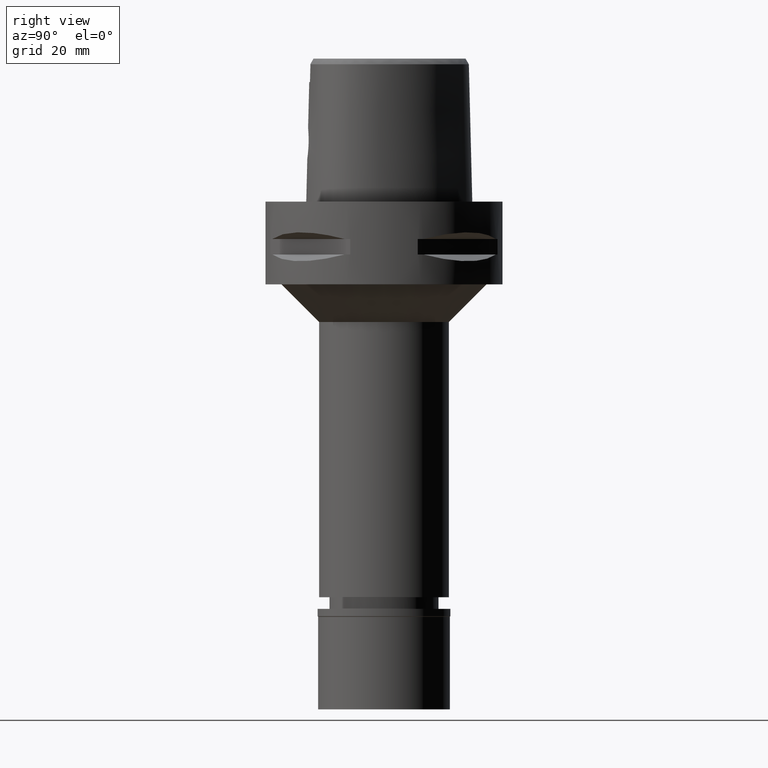
[diagram: clean part render]
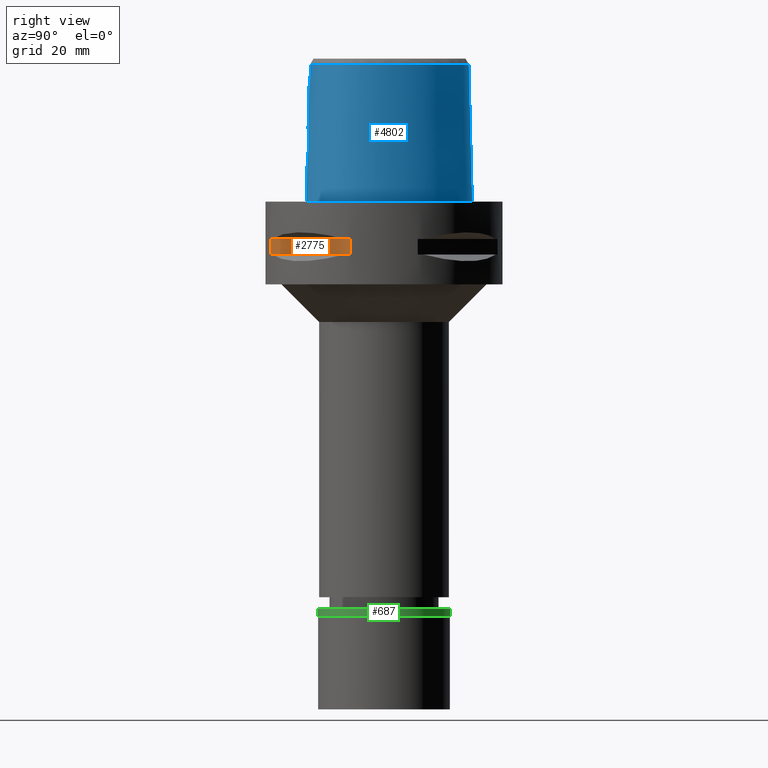
[diagram: same view with three faces highlighted in distinct colors, each labeled with its STEP entity id]
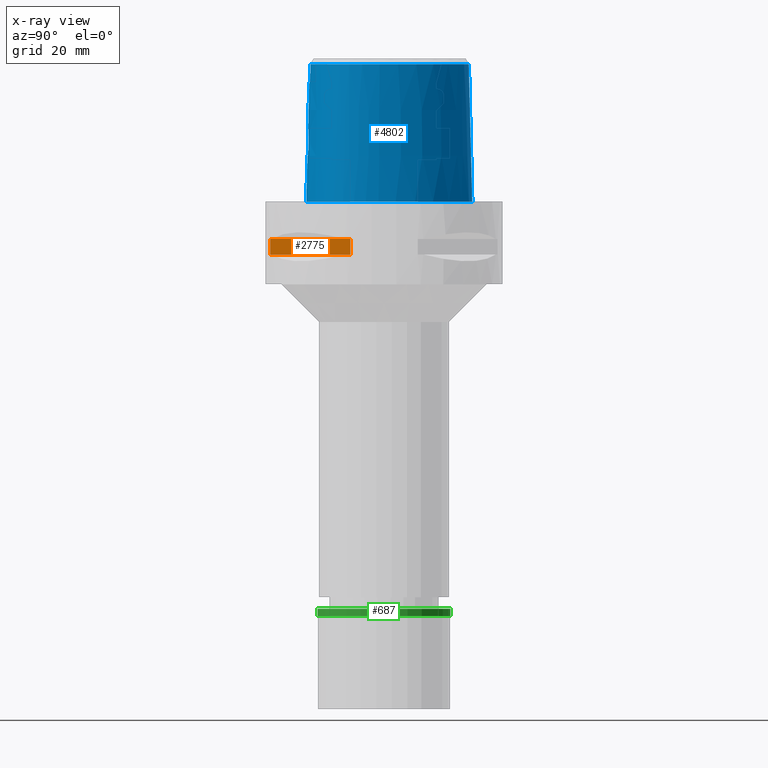
[diagram: x-ray of the same camera — body ghosted, the three highlighted faces saturated]
A machine part, right view with three faces highlighted in distinct colors.
The next image is the same camera in x-ray (body ghosted, the three faces saturated) — at least one of them is partly hidden behind the body in this view.
Their STEP definitions:

[orange] entity #2775 — the highlighted planar face has unit normal (-0.7071, 0.7071, 0).
#26 = CARTESIAN_POINT ( 'NONE',  ( 8.981198972016999349, -30.19251670572000279, -14.05000000000000071 ) ) ;
#368 = VERTEX_POINT ( 'NONE', #4318 ) ;
#369 = ORIENTED_EDGE ( 'NONE', *, *, #1678, .T. ) ;
#520 = EDGE_CURVE ( 'NONE', #2827, #368, #4871, .T. ) ;
#658 = FACE_OUTER_BOUND ( 'NONE', #4278, .T. ) ;
#858 = CARTESIAN_POINT ( 'NONE',  ( 8.981198972016999349, -30.19251670572000279, -9.950000000000001066 ) ) ;
#918 = LINE ( 'NONE', #858, #3631 ) ;
#1078 = PLANE ( 'NONE',  #1776 ) ;
#1226 = DIRECTION ( 'NONE',  ( 0.7071067811865474617, 0.7071067811865474617, 0.0000000000000000000 ) ) ;
#1415 = ORIENTED_EDGE ( 'NONE', *, *, #1747, .T. ) ;
#1500 = CARTESIAN_POINT ( 'NONE',  ( 30.19251670572000279, -8.981198972016999349, -14.05000000000000071 ) ) ;
#1678 = EDGE_CURVE ( 'NONE', #3376, #1907, #2363, .T. ) ;
#1747 = EDGE_CURVE ( 'NONE', #2827, #3376, #918, .T. ) ;
#1776 = AXIS2_PLACEMENT_3D ( 'NONE', #2218, #2975, #3757 ) ;
#1907 = VERTEX_POINT ( 'NONE', #4098 ) ;
#2027 = DIRECTION ( 'NONE',  ( 0.0000000000000000000, 0.0000000000000000000, -1.000000000000000000 ) ) ;
#2126 = ORIENTED_EDGE ( 'NONE', *, *, #4022, .T. ) ;
#2218 = CARTESIAN_POINT ( 'NONE',  ( 31.96122650962999856, -7.212489168103000559, -9.950000000000001066 ) ) ;
#2363 = LINE ( 'NONE', #26, #2417 ) ;
#2417 = VECTOR ( 'NONE', #1226, 1000.000000000000114 ) ;
#2573 = CARTESIAN_POINT ( 'NONE',  ( 8.981198972019999616, -30.19251670572000279, -9.950000000000001066 ) ) ;
#2577 = CARTESIAN_POINT ( 'NONE',  ( 8.981198972016999349, -30.19251670572000279, -9.950000000000001066 ) ) ;
#2689 = LINE ( 'NONE', #1500, #3643 ) ;
#2775 = ADVANCED_FACE ( 'NONE', ( #658 ), #1078, .F. ) ;
#2827 = VERTEX_POINT ( 'NONE', #2573 ) ;
#2975 = DIRECTION ( 'NONE',  ( -0.7071067811865475727, 0.7071067811865475727, 0.0000000000000000000 ) ) ;
#3215 = ORIENTED_EDGE ( 'NONE', *, *, #520, .F. ) ;
#3376 = VERTEX_POINT ( 'NONE', #4638 ) ;
#3631 = VECTOR ( 'NONE', #2027, 1000.000000000000000 ) ;
#3643 = VECTOR ( 'NONE', #4634, 1000.000000000000000 ) ;
#3739 = DIRECTION ( 'NONE',  ( 0.7071067811865474617, 0.7071067811865474617, 0.0000000000000000000 ) ) ;
#3757 = DIRECTION ( 'NONE',  ( 0.0000000000000000000, 0.0000000000000000000, 1.000000000000000000 ) ) ;
#4022 = EDGE_CURVE ( 'NONE', #1907, #368, #2689, .T. ) ;
#4096 = VECTOR ( 'NONE', #3739, 1000.000000000000114 ) ;
#4098 = CARTESIAN_POINT ( 'NONE',  ( 30.19251670572000279, -8.981198972019999616, -14.05000000000000071 ) ) ;
#4278 = EDGE_LOOP ( 'NONE', ( #3215, #1415, #369, #2126 ) ) ;
#4318 = CARTESIAN_POINT ( 'NONE',  ( 30.19251670572000279, -8.981198972016999349, -9.950000000000001066 ) ) ;
#4634 = DIRECTION ( 'NONE',  ( 0.0000000000000000000, 0.0000000000000000000, 1.000000000000000000 ) ) ;
#4638 = CARTESIAN_POINT ( 'NONE',  ( 8.981198972016999349, -30.19251670572000279, -14.05000000000000071 ) ) ;
#4871 = LINE ( 'NONE', #2577, #4096 ) ;

[blue] entity #4802 — the highlighted face is a freeform B-spline surface patch.
#3 = CARTESIAN_POINT ( 'NONE',  ( 2.305334229535943802, -20.12831948498825341, 18.83048013503533014 ) ) ;
#7 = CARTESIAN_POINT ( 'NONE',  ( -0.4558512610111000174, 22.85344955228999808, 24.59140896827000233 ) ) ;
#47 = DIRECTION ( 'NONE',  ( 1.720264183761959277E-12, 0.02499051290962944413, -0.9996876883629776112 ) ) ;
#116 = CARTESIAN_POINT ( 'NONE',  ( 1.870063857759000081, -20.39691443148999994, 11.93048553905999931 ) ) ;
#140 = VECTOR ( 'NONE', #47, 999.9999999999998863 ) ;
#174 = CARTESIAN_POINT ( 'NONE',  ( 20.07948471261000023, -10.22500054636999955, 37.25233239748000358 ) ) ;
#198 = CARTESIAN_POINT ( 'NONE',  ( 4.868968357505999656, 21.95285521589000055, 24.59140896827000233 ) ) ;
#205 = EDGE_CURVE ( 'NONE', #4955, #2839, #4650, .T. ) ;
#208 = CARTESIAN_POINT ( 'NONE',  ( 2.282207029747092886, -20.29700151028867694, 12.15162930637129612 ) ) ;
#234 = CARTESIAN_POINT ( 'NONE',  ( 2.830175095662165408, -20.24590160278924600, 12.60298252333854663 ) ) ;
#239 = CARTESIAN_POINT ( 'NONE',  ( 19.64947370050258613, -12.82525393668216651, -2.066734200662292964E-06 ) ) ;
#255 = CARTESIAN_POINT ( 'NONE',  ( 3.644654988697317854, -20.14185568960485995, 13.73169098995836279 ) ) ;
#269 = CARTESIAN_POINT ( 'NONE',  ( 21.14970177531354878, -6.717195943319764773, 36.52186680739942659 ) ) ;
#280 = CARTESIAN_POINT ( 'NONE',  ( 1.488028627206210652, -20.35026873354180665, 11.73319909950379092 ) ) ;
#295 = CARTESIAN_POINT ( 'NONE',  ( 17.80867301126000157, 10.28184204531000034, 11.93048553905999931 ) ) ;
#306 = ORIENTED_EDGE ( 'NONE', *, *, #3628, .T. ) ;
#320 = CARTESIAN_POINT ( 'NONE',  ( 20.65879041319000109, -10.48283616354000003, 11.93048553905999931 ) ) ;
#338 = CARTESIAN_POINT ( 'NONE',  ( 2.673904828756407337, -20.10928166633797076, 18.54472627324917156 ) ) ;
#340 = CARTESIAN_POINT ( 'NONE',  ( 7.099337602270000325, 20.50831360947000093, 37.25233239748000358 ) ) ;
#341 = CARTESIAN_POINT ( 'NONE',  ( 14.22011350745951574, -16.41829354688277931, 36.52186680739942659 ) ) ;
#362 = CARTESIAN_POINT ( 'NONE',  ( 3.745459306423714274, -20.04797394566475788, 17.04080371185160914 ) ) ;
#392 = CARTESIAN_POINT ( 'NONE',  ( 2.144427845716718739, -20.13626349860817299, 18.93810770242221153 ) ) ;
#412 = CARTESIAN_POINT ( 'NONE',  ( 2.361140904826402043, -20.12552479265203331, 18.79118822093476027 ) ) ;
#416 = CARTESIAN_POINT ( 'NONE',  ( 2.503210888525999600, 22.99958931155000030, 11.93048553905999931 ) ) ;
#427 = FACE_OUTER_BOUND ( 'NONE', #1466, .T. ) ;
#497 = CARTESIAN_POINT ( 'NONE',  ( 2.041042029990999821E-08, -19.88004246002000031, 31.80000004972000127 ) ) ;
#510 = CARTESIAN_POINT ( 'NONE',  ( -0.4479923869737000297, -20.05810122427000053, 24.59140896827000233 ) ) ;
#524 = CARTESIAN_POINT ( 'NONE',  ( 0.0000000000000000000, -20.18628283968999781, 19.55000000000000071 ) ) ;
#535 = VERTEX_POINT ( 'NONE', #4106 ) ;
#566 = CARTESIAN_POINT ( 'NONE',  ( 18.35112148606999938, -13.96357030615000028, 11.93048553905999931 ) ) ;
#579 = CARTESIAN_POINT ( 'NONE',  ( 0.0000000000000000000, -20.18628283968999781, 19.55000000000000071 ) ) ;
#588 = CARTESIAN_POINT ( 'NONE',  ( 10.34823226808999941, 18.70095486035000221, 24.59140896827000233 ) ) ;
#626 = CARTESIAN_POINT ( 'NONE',  ( 16.95889175801266191, -15.67838871266147649, -2.066734200662292964E-06 ) ) ;
#679 = EDGE_CURVE ( 'NONE', #535, #2009, #3219, .T. ) ;
#685 = CARTESIAN_POINT ( 'NONE',  ( 19.86834399741999846, 4.339653554736999652, 37.25233239748000358 ) ) ;
#686 = CARTESIAN_POINT ( 'NONE',  ( 19.55745538001157513, -11.29150212657400587, 36.52186680739942659 ) ) ;
#708 = CARTESIAN_POINT ( 'NONE',  ( 17.53318563476999969, 10.12278921585000013, 24.59140896827000233 ) ) ;
#732 = CARTESIAN_POINT ( 'NONE',  ( 3.765593220699258392, -20.04704214534180906, 16.99108095766955984 ) ) ;
#735 = CARTESIAN_POINT ( 'NONE',  ( 7.580410842822999484, 21.33037926746000323, -0.7304378901465999885 ) ) ;
#744 = EDGE_CURVE ( 'NONE', #3391, #1271, #1643, .T. ) ;
#755 = CARTESIAN_POINT ( 'NONE',  ( 16.39211273426368010, -14.95758104715331172, 36.52186680739942659 ) ) ;
#779 = CARTESIAN_POINT ( 'NONE',  ( 2.915545606163441050, -20.09570297646316206, 18.31119129211962360 ) ) ;
#814 = CARTESIAN_POINT ( 'NONE',  ( -0.6834383972313999855, 22.83968675549000338, 24.59140896827000233 ) ) ;
#834 = CARTESIAN_POINT ( 'NONE',  ( 2.894506219204310948, -20.09690955887031549, 18.33274339089276594 ) ) ;
#837 = CARTESIAN_POINT ( 'NONE',  ( 4.750826077225000610, 21.65775770017999591, 37.25233239748000358 ) ) ;
#883 = VERTEX_POINT ( 'NONE', #579 ) ;
#908 = CARTESIAN_POINT ( 'NONE',  ( -0.4561077450366000097, -20.69106756147000326, -0.7304378901465999885 ) ) ;
#930 = CARTESIAN_POINT ( 'NONE',  ( 11.23887130433999992, -18.91049776510999791, -0.7304378901465999885 ) ) ;
#954 = CARTESIAN_POINT ( 'NONE',  ( 16.38077671595999973, -14.94316433702999980, 37.25233239748000358 ) ) ;
#980 = CARTESIAN_POINT ( 'NONE',  ( 21.05621876987999741, -0.4440252194307000022, 37.25233239748000358 ) ) ;
#1010 = CARTESIAN_POINT ( 'NONE',  ( 21.13154853379999665, -6.714587026899999422, 37.25233239748000358 ) ) ;
#1016 = CARTESIAN_POINT ( 'NONE',  ( 2.396851615580802175, -20.28741283536880502, 12.23208293719615547 ) ) ;
#1039 = CARTESIAN_POINT ( 'NONE',  ( 3.850246712570787100, -20.10780614032470837, 14.21172176769479734 ) ) ;
#1043 = CARTESIAN_POINT ( 'NONE',  ( 22.24453913037089237, -4.100468749696545956, -2.066734200662292964E-06 ) ) ;
#1090 = CARTESIAN_POINT ( 'NONE',  ( 3.714384130523716188, -20.13065104887486712, 13.88538127571099956 ) ) ;
#1099 = CARTESIAN_POINT ( 'NONE',  ( 14.42198652406999848, 15.65278600593999769, -0.7304378901465999885 ) ) ;
#1113 = CARTESIAN_POINT ( 'NONE',  ( 7.571159460527183249, 21.31457035722905502, -2.066734200662292964E-06 ) ) ;
#1117 = CARTESIAN_POINT ( 'NONE',  ( 4.020738798819311732, -20.06858537622277439, 14.99755720161237527 ) ) ;
#1122 = CARTESIAN_POINT ( 'NONE',  ( 10.14358053135999960, 18.45723390973000377, 37.25233239748000358 ) ) ;
#1123 = CARTESIAN_POINT ( 'NONE',  ( 21.07429999883084193, -0.4408303635840806201, 36.52186680739942659 ) ) ;
#1170 = CARTESIAN_POINT ( 'NONE',  ( 3.860403433736958601, -20.04330035600994009, 16.72651338064794047 ) ) ;
#1174 = CARTESIAN_POINT ( 'NONE',  ( 21.32871516739992757, -4.105831245033825461, 36.52186680739942659 ) ) ;
#1195 = CARTESIAN_POINT ( 'NONE',  ( 4.048221369819505533, -20.05572751809215148, 15.37605551826763239 ) ) ;
#1198 = B_SPLINE_SURFACE_WITH_KNOTS ( 'NONE', 3, 3, ( 
 ( #2046, #3590, #1666, #3614 ),
 ( #908, #1991, #510, #1325 ),
 ( #3534, #116, #1691, #2864 ),
 ( #3156, #4700, #2782, #4400 ),
 ( #930, #2487, #4008, #3452 ),
 ( #2293, #3409, #3431, #3828 ),
 ( #4448, #4851, #4420, #954 ),
 ( #2511, #566, #3668, #2939 ),
 ( #1854, #2646, #4034, #3285 ),
 ( #4963, #4473, #4941, #3029 ),
 ( #1485, #320, #1881, #174 ),
 ( #3051, #1504, #3311, #1737 ),
 ( #1395, #2536, #2123, #1010 ),
 ( #4564, #2558, #4085, #2671 ),
 ( #4587, #2909, #1761, #980 ),
 ( #4824, #1369, #4185, #685 ),
 ( #2245, #295, #708, #3783 ),
 ( #1099, #2268, #1904, #3806 ),
 ( #4212, #4060, #588, #1122 ),
 ( #735, #2883, #2147, #340 ),
 ( #1347, #3690, #198, #837 ),
 ( #3075, #416, #2416, #4689 ),
 ( #1529, #1959, #1230, #1979 ),
 ( #4616, #2771, #7, #4661 ),
 ( #3903, #4311, #814, #4639 ) ),
 .UNSPECIFIED., .F., .F., .F.,
 ( 4, 1, 1, 1, 1, 1, 1, 1, 1, 1, 1, 1, 1, 1, 1, 1, 1, 1, 1, 1, 1, 1, 4 ),
 ( 4, 4 ),
 ( -0.008985960173574000093, 0.0000000000000000000, 0.08333333333339000559, 0.1666666666667000196, 0.2083333333333000081, 0.2500000000000000000, 0.2916666666666999919, 0.3125000000000000000, 0.3333333333333000081, 0.3541666666666000163, 0.3749999999998999689, 0.4166666666666000163, 0.4583333333332000326, 0.4999999999998999689, 0.5833333333331000015, 0.6666666666664999852, 0.7499999999998000488, 0.8333333333329999704, 0.8749999999997000177, 0.9166666666664000651, 0.9583333333329999704, 1.000000000000000000, 1.011710456763000199 ),
 ( -4.340253559332000284E-09, 1.000000221353000152 ),
 .UNSPECIFIED. ) ;
#1230 = CARTESIAN_POINT ( 'NONE',  ( 0.5826623200121999746, 22.88447422427000078, 24.59140896827000233 ) ) ;
#1271 = VERTEX_POINT ( 'NONE', #3693 ) ;
#1299 = ORIENTED_EDGE ( 'NONE', *, *, #679, .T. ) ;
#1325 = CARTESIAN_POINT ( 'NONE',  ( -0.4439347079422999998, -19.74161805566999917, 37.25233239748000358 ) ) ;
#1347 = CARTESIAN_POINT ( 'NONE',  ( 5.105252918069000501, 22.54305024730000184, -0.7304378901465999885 ) ) ;
#1369 = CARTESIAN_POINT ( 'NONE',  ( 20.46725036855000113, 4.555493622105000640, 11.93048553905999931 ) ) ;
#1372 = ORIENTED_EDGE ( 'NONE', *, *, #3898, .T. ) ;
#1395 = CARTESIAN_POINT ( 'NONE',  ( 22.07548129635000222, -6.850245536236999833, -0.7304378901465999885 ) ) ;
#1402 = CARTESIAN_POINT ( 'NONE',  ( 3.042491796687598615, -20.22274507510632802, 12.82354767343123747 ) ) ;
#1406 = CARTESIAN_POINT ( 'NONE',  ( 2.113823676138480767, -20.67500005166150601, -2.066734200662292964E-06 ) ) ;
#1423 = CARTESIAN_POINT ( 'NONE',  ( 2.628027080903733825, -20.26624238139267931, 12.41747670475470855 ) ) ;
#1426 = CARTESIAN_POINT ( 'NONE',  ( 6.341471028391895359, -20.29812505114589172, -2.066734200662292964E-06 ) ) ;
#1446 = CARTESIAN_POINT ( 'NONE',  ( 1.511996643077990310, -20.34900293593731746, 11.74281483622983657 ) ) ;
#1466 = EDGE_LOOP ( 'NONE', ( #3877, #1299, #4872, #4138, #306, #4337, #3593, #1372 ) ) ;
#1474 = CARTESIAN_POINT ( 'NONE',  ( 2.808608589973694336, -20.24816661311869481, 12.58196638594458072 ) ) ;
#1485 = CARTESIAN_POINT ( 'NONE',  ( 20.94844326348000152, -10.61175397212999982, -0.7304378901465999885 ) ) ;
#1502 = CARTESIAN_POINT ( 'NONE',  ( 3.559803832330558304, -20.05788146350366574, 17.44950363746816180 ) ) ;
#1504 = CARTESIAN_POINT ( 'NONE',  ( 21.26836734601999979, -8.910752224874999072, 11.93048553905999931 ) ) ;
#1525 = CARTESIAN_POINT ( 'NONE',  ( 4.049995275655164484, -20.05320010482691373, 15.46762644421683852 ) ) ;
#1529 = CARTESIAN_POINT ( 'NONE',  ( 0.6155340743139999793, 23.51883498281999962, -0.7304378901465999885 ) ) ;
#1555 = CARTESIAN_POINT ( 'NONE',  ( 10.15538781006817182, 18.47129526702395452, 36.52186680739942659 ) ) ;
#1574 = CARTESIAN_POINT ( 'NONE',  ( 3.080229322184548035, -20.08617626112495103, 18.13071590546288192 ) ) ;
#1594 = CARTESIAN_POINT ( 'NONE',  ( 18.06826693023942809, 10.43171877596624064, -2.066734200662292964E-06 ) ) ;
#1598 = CARTESIAN_POINT ( 'NONE',  ( 2.772326413959757208, -20.10389738242800917, 18.45539022241212379 ) ) ;
#1603 = CARTESIAN_POINT ( 'NONE',  ( 3.736696120837999402, -19.67778323291999953, 31.80000004972999861 ) ) ;
#1613 = EDGE_CURVE ( 'NONE', #4955, #883, #3998, .T. ) ;
#1643 = B_SPLINE_CURVE_WITH_KNOTS ( 'NONE', 3,
 ( #1603, #4335, #3126, #1960 ),
 .UNSPECIFIED., .F., .F.,
 ( 4, 4 ),
 ( 0.0000000000000000000, 1.000000000000000000 ),
 .UNSPECIFIED. ) ;
#1644 = CARTESIAN_POINT ( 'NONE',  ( 3.637738219117000238, -19.56971420299000286, 36.52185956443999970 ) ) ;
#1666 = CARTESIAN_POINT ( 'NONE',  ( -0.6718836805062998740, -20.05378834289000167, 24.59140896827000233 ) ) ;
#1691 = CARTESIAN_POINT ( 'NONE',  ( 1.853272111966999924, -20.08023966233000124, 24.59140896827000233 ) ) ;
#1714 = VERTEX_POINT ( 'NONE', #4331 ) ;
#1737 = CARTESIAN_POINT ( 'NONE',  ( 20.65947724267000041, -8.729764281241999768, 37.25233239748000358 ) ) ;
#1761 = CARTESIAN_POINT ( 'NONE',  ( 21.36961485364000168, -0.3886498180556000048, 24.59140896827000233 ) ) ;
#1770 = CARTESIAN_POINT ( 'NONE',  ( 2.570081009084386192, -20.27170108689807293, 12.36908902939368460 ) ) ;
#1797 = CARTESIAN_POINT ( 'NONE',  ( 3.504989208434506676, -20.16277707621800275, 13.46647361527119813 ) ) ;
#1829 = CARTESIAN_POINT ( 'NONE',  ( 7.300578979383843148, -19.07170738130534104, 36.52186680739942659 ) ) ;
#1842 = CARTESIAN_POINT ( 'NONE',  ( 1.537967824490865887, -20.34761404973959031, 11.75337532982797484 ) ) ;
#1854 = CARTESIAN_POINT ( 'NONE',  ( 19.66427015052999749, -12.83600704984000096, -0.7304378901465999885 ) ) ;
#1877 = CARTESIAN_POINT ( 'NONE',  ( 2.467729343594165847, -20.12009802658482016, 18.71204267792763787 ) ) ;
#1881 = CARTESIAN_POINT ( 'NONE',  ( 20.36913756290000066, -10.35391835495999935, 24.59140896827000233 ) ) ;
#1903 = CARTESIAN_POINT ( 'NONE',  ( 3.736696120837999402, -19.67778323291999953, 31.80000004972999861 ) ) ;
#1904 = CARTESIAN_POINT ( 'NONE',  ( 13.93560852859000043, 15.24203780001000119, 24.59140896827000233 ) ) ;
#1905 = CARTESIAN_POINT ( 'NONE',  ( 13.70645019739091097, 15.04851265230396962, 36.52186680739942659 ) ) ;
#1928 = CARTESIAN_POINT ( 'NONE',  ( 4.049643110176806005, -20.05399160878187814, 15.43795828973407325 ) ) ;
#1932 = CARTESIAN_POINT ( 'NONE',  ( 20.09619608768375443, -10.23243839430028146, 36.52186680739942659 ) ) ;
#1956 = CARTESIAN_POINT ( 'NONE',  ( 1.856701250911930279, -20.14848423775700681, 19.09993988372597684 ) ) ;
#1959 = CARTESIAN_POINT ( 'NONE',  ( 0.5990981971630999769, 23.20165460353999975, 11.93048553905999931 ) ) ;
#1960 = CARTESIAN_POINT ( 'NONE',  ( 2.041042029990999821E-08, -19.88004246002000031, 31.80000004972000127 ) ) ;
#1968 = CARTESIAN_POINT ( 'NONE',  ( -9.433993878921999819E-13, -20.38876923348000147, 11.44999999999999929 ) ) ;
#1976 = CARTESIAN_POINT ( 'NONE',  ( 3.828814954409509586, -20.04436409866676527, 16.82317999465562863 ) ) ;
#1979 = CARTESIAN_POINT ( 'NONE',  ( 0.5662264428612999723, 22.56729384499999824, 37.25233239748000358 ) ) ;
#1991 = CARTESIAN_POINT ( 'NONE',  ( -0.4520500660052000352, -20.37458439286999834, 11.93048553905999931 ) ) ;
#2009 = VERTEX_POINT ( 'NONE', #1644 ) ;
#2046 = CARTESIAN_POINT ( 'NONE',  ( -0.6840631437227000511, -20.68668116917000432, -0.7304378901465999885 ) ) ;
#2075 = LINE ( 'NONE', #3623, #140 ) ;
#2123 = CARTESIAN_POINT ( 'NONE',  ( 21.44619278797999939, -6.759806530011999826, 24.59140896827000233 ) ) ;
#2147 = CARTESIAN_POINT ( 'NONE',  ( 7.259695349121000341, 20.78233549547000081, 24.59140896827000233 ) ) ;
#2184 = CARTESIAN_POINT ( 'NONE',  ( 1.319600680390656811, -20.35863312411228421, 11.66994494017201411 ) ) ;
#2209 = CARTESIAN_POINT ( 'NONE',  ( 2.953000302320876624, -20.23281254683992003, 12.72512295699170082 ) ) ;
#2210 = B_SPLINE_CURVE_WITH_KNOTS ( 'NONE', 3,
 ( #4406, #3270, #3167, #4811 ),
 .UNSPECIFIED., .F., .F.,
 ( 4, 4 ),
 ( 0.0000000000000000000, 1.000000000000000000 ),
 .UNSPECIFIED. ) ;
#2221 = CARTESIAN_POINT ( 'NONE',  ( -1.721531780973000088E-11, 22.56201468012000078, 36.52186680743999858 ) ) ;
#2236 = CARTESIAN_POINT ( 'NONE',  ( 14.67337966984966258, -17.21410160753009677, -2.066734200662292964E-06 ) ) ;
#2245 = CARTESIAN_POINT ( 'NONE',  ( 18.08416038776000079, 10.44089487477999967, -0.7304378901465999885 ) ) ;
#2268 = CARTESIAN_POINT ( 'NONE',  ( 14.17879752633000123, 15.44741190297999900, 11.93048553905999931 ) ) ;
#2269 = CARTESIAN_POINT ( 'NONE',  ( 3.637738219117000238, -19.56971420299000286, 36.52185956443999970 ) ) ;
#2291 = CARTESIAN_POINT ( 'NONE',  ( 3.003234361618615011, -20.09064592609322020, 18.21745801850156354 ) ) ;
#2293 = CARTESIAN_POINT ( 'NONE',  ( 14.68244497380999825, -17.23001773488000055, -0.7304378901465999885 ) ) ;
#2313 = CARTESIAN_POINT ( 'NONE',  ( 7.108589361577482002, 20.52412316394452674, 36.52186680739942659 ) ) ;
#2333 = CARTESIAN_POINT ( 'NONE',  ( 4.026067555606275938, -20.04243146964168787, 16.01312629722239578 ) ) ;
#2360 = CARTESIAN_POINT ( 'NONE',  ( 4.563156939745000540E-11, 23.47499999999000053, 5.514107688971999147E-14 ) ) ;
#2416 = CARTESIAN_POINT ( 'NONE',  ( 2.438150570192000099, 22.68791623401000024, 24.59140896827000233 ) ) ;
#2456 = B_SPLINE_CURVE_WITH_KNOTS ( 'NONE', 3,
 ( #4864, #1406, #1426, #2568, #2236, #626, #3730, #239, #4885, #3753, #2970, #4506, #1043, #2596, #4127, #1594, #4979, #2664, #1113, #4580, #3844, #4279, #2360 ),
 .UNSPECIFIED., .F., .F.,
 ( 4, 1, 1, 1, 1, 1, 1, 1, 1, 1, 1, 1, 1, 1, 1, 1, 1, 1, 1, 1, 4 ),
 ( 0.0000000000000000000, 0.08333333333339000559, 0.1666666666667000196, 0.2083333333333000081, 0.2500000000000000000, 0.2916666666666999919, 0.3125000000000000000, 0.3333333333333000081, 0.3541666666666000163, 0.3749999999998999689, 0.4166666666666000163, 0.4583333333332000326, 0.4999999999998999689, 0.5833333333331000015, 0.6666666666664999852, 0.7499999999998000488, 0.8333333333329999704, 0.8749999999997000177, 0.9166666666664000651, 0.9583333333329999704, 1.000000000000000000 ),
 .UNSPECIFIED. ) ;
#2476 = CARTESIAN_POINT ( 'NONE',  ( 6.840933290501420598E-09, -20.08420636276543547, 23.63333344114123236 ) ) ;
#2487 = CARTESIAN_POINT ( 'NONE',  ( 11.13012652863999996, -18.61140108638999990, 11.93048553905999931 ) ) ;
#2511 = CARTESIAN_POINT ( 'NONE',  ( 18.58171406970000206, -14.18198046912999999, -0.7304378901465999885 ) ) ;
#2536 = CARTESIAN_POINT ( 'NONE',  ( 21.76083704216000214, -6.805026033124000229, 11.93048553905999931 ) ) ;
#2558 = CARTESIAN_POINT ( 'NONE',  ( 21.94536970734000292, -4.102220499706000112, 11.93048553905999931 ) ) ;
#2565 = CARTESIAN_POINT ( 'NONE',  ( 3.169150985202967341, -20.20760989054315360, 12.97742286930335531 ) ) ;
#2568 = CARTESIAN_POINT ( 'NONE',  ( 11.23259758503158245, -18.89324223631525257, -2.066734200662292964E-06 ) ) ;
#2596 = CARTESIAN_POINT ( 'NONE',  ( 21.97832652902406636, -0.2810937409606900084, -2.066734200662292964E-06 ) ) ;
#2615 = CARTESIAN_POINT ( 'NONE',  ( 0.2519697368790916325, -20.38876923348000503, 11.44999999999999751 ) ) ;
#2627 = CARTESIAN_POINT ( 'NONE',  ( 17.27359236348904048, 9.972912859140306452, 36.52186680739942659 ) ) ;
#2646 = CARTESIAN_POINT ( 'NONE',  ( 19.40779762437999878, -12.64961922773000147, 11.93048553905999931 ) ) ;
#2664 = CARTESIAN_POINT ( 'NONE',  ( 10.74572894399159040, 19.17433597728068406, -2.066734200662292964E-06 ) ) ;
#2668 = CARTESIAN_POINT ( 'NONE',  ( 2.880386059683543110, -20.09771851976560342, 18.34709984349684220 ) ) ;
#2671 = CARTESIAN_POINT ( 'NONE',  ( 21.31039798068000124, -4.105938499082999904, 37.25233239748000358 ) ) ;
#2672 = CARTESIAN_POINT ( 'NONE',  ( 10.91891095221457419, -18.03046396093137815, 36.52186680739942659 ) ) ;
#2691 = CARTESIAN_POINT ( 'NONE',  ( 0.4948470747598994190, -20.18628283969000492, 19.54999999999999716 ) ) ;
#2712 = CARTESIAN_POINT ( 'NONE',  ( 3.346444325181144208, -20.07049246070038606, 17.78503332968190520 ) ) ;
#2716 = CARTESIAN_POINT ( 'NONE',  ( 2.376843874103184096, 22.39422497744606133, 36.52186680739942659 ) ) ;
#2769 = CARTESIAN_POINT ( 'NONE',  ( 4.038482248007211339, -20.06165359963147665, 15.18817722016143179 ) ) ;
#2771 = CARTESIAN_POINT ( 'NONE',  ( -0.4685451933164999638, 23.16976066020999880, 11.93048553905999931 ) ) ;
#2782 = CARTESIAN_POINT ( 'NONE',  ( 6.232237552394000346, -19.68961161920000080, 24.59140896827000233 ) ) ;
#2839 = VERTEX_POINT ( 'NONE', #4911 ) ;
#2864 = CARTESIAN_POINT ( 'NONE',  ( 1.836480366174999990, -19.76356489316000165, 37.25233239748000358 ) ) ;
#2883 = CARTESIAN_POINT ( 'NONE',  ( 7.420053095971999468, 21.05635738145999980, 11.93048553905999931 ) ) ;
#2909 = CARTESIAN_POINT ( 'NONE',  ( 21.68301093739999885, -0.3332744166804000319, 11.93048553905999931 ) ) ;
#2918 = CARTESIAN_POINT ( 'NONE',  ( 1.734379789056268439, -20.33697246834248062, 11.83436638252621975 ) ) ;
#2939 = CARTESIAN_POINT ( 'NONE',  ( 17.88993631878999935, -13.52674998019000085, 37.25233239748000358 ) ) ;
#2946 = CARTESIAN_POINT ( 'NONE',  ( 3.210108431848968102, -20.20255916619498038, 13.02975361490054063 ) ) ;
#2967 = CARTESIAN_POINT ( 'NONE',  ( 3.686910441657936133, -20.13511169296126013, 13.82359477180941276 ) ) ;
#2970 = CARTESIAN_POINT ( 'NONE',  ( 21.55524830979042150, -8.996025405396677499, -2.066734200662292964E-06 ) ) ;
#3019 = CARTESIAN_POINT ( 'NONE',  ( 2.853007646188750357, -20.24348516854156799, 12.62547111175751979 ) ) ;
#3029 = CARTESIAN_POINT ( 'NONE',  ( 19.54161151507000227, -11.28235466685000077, 37.25233239748000358 ) ) ;
#3049 = CARTESIAN_POINT ( 'NONE',  ( 3.265869583393927300, -20.07528142228554913, 17.89964299955888904 ) ) ;
#3051 = CARTESIAN_POINT ( 'NONE',  ( 21.57281239769000081, -9.001246196690999568, -0.7304378901465999885 ) ) ;
#3072 = CARTESIAN_POINT ( 'NONE',  ( 3.755991642141464304, -20.04748304465435993, 17.01495889863737432 ) ) ;
#3075 = CARTESIAN_POINT ( 'NONE',  ( 2.568271206859999989, 23.31126238909000037, -0.7304378901465999885 ) ) ;
#3099 = B_SPLINE_CURVE_WITH_KNOTS ( 'NONE', 3,
 ( #497, #3575, #2476, #524 ),
 .UNSPECIFIED., .F., .F.,
 ( 4, 4 ),
 ( 0.0000000000000000000, 1.000000000000000000 ),
 .UNSPECIFIED. ) ;
#3122 = CARTESIAN_POINT ( 'NONE',  ( 2.520050460812478299, -20.11738995382086514, 18.67115940202065261 ) ) ;
#3126 = CARTESIAN_POINT ( 'NONE',  ( 1.251533272182431267, -19.88005341395449932, 31.80000012137773524 ) ) ;
#3144 = CARTESIAN_POINT ( 'NONE',  ( 3.787426346251056231, -20.04607170149531115, 16.93525315950302712 ) ) ;
#3156 = CARTESIAN_POINT ( 'NONE',  ( 6.344715577631999892, -20.31619965487999835, -0.7304378901465999885 ) ) ;
#3167 = CARTESIAN_POINT ( 'NONE',  ( 3.671249151389730514, -19.60525176641679579, 34.94790639287000289 ) ) ;
#3219 = B_SPLINE_CURVE_WITH_KNOTS ( 'NONE', 3,
 ( #2221, #4589, #2716, #3411, #2313, #1555, #1905, #2627, #4213, #1123, #1174, #269, #4234, #1932, #686, #3453, #3761, #755, #341, #2672, #1829, #4542, #2269 ),
 .UNSPECIFIED., .F., .F.,
 ( 4, 1, 1, 1, 1, 1, 1, 1, 1, 1, 1, 1, 1, 1, 1, 1, 1, 1, 1, 1, 4 ),
 ( 0.0000000000000000000, 0.04382683003322074972, 0.08765366006602062776, 0.1314804900989258452, 0.1753073201318310625, 0.2629609801974309158, 0.3506146402631361569, 0.4382683003289464252, 0.5259219603945464172, 0.5697487904274515236, 0.6135756204602514918, 0.6574024504931567092, 0.6793158655095566933, 0.7012292805259567885, 0.7231426955423566616, 0.7450561105587566457, 0.7888829405916618631, 0.8327097706245670805, 0.8765366006573669377, 0.9641902607230826705, 1.000000000000000000 ),
 .UNSPECIFIED. ) ;
#3270 = CARTESIAN_POINT ( 'NONE',  ( 3.704239288984441103, -19.64128042389065598, 33.37395322129999897 ) ) ;
#3285 = CARTESIAN_POINT ( 'NONE',  ( 18.89485257207000046, -12.27684358351000071, 37.25233239748000358 ) ) ;
#3293 = CARTESIAN_POINT ( 'NONE',  ( 0.8988479711760153368, -20.37494334817867525, 11.54879813003858935 ) ) ;
#3311 = CARTESIAN_POINT ( 'NONE',  ( 20.96392229434999877, -8.820258253058000264, 24.59140896827000233 ) ) ;
#3369 = CARTESIAN_POINT ( 'NONE',  ( 3.599362307491986712, -20.14875877779054747, 13.64217581387161182 ) ) ;
#3391 = VERTEX_POINT ( 'NONE', #1903 ) ;
#3395 = CARTESIAN_POINT ( 'NONE',  ( 1.946611601997928709, -20.32311006286644428, 11.93862046598771265 ) ) ;
#3409 = CARTESIAN_POINT ( 'NONE',  ( 14.52531259390000073, -16.95413741355999804, 11.93048553905999931 ) ) ;
#3411 = CARTESIAN_POINT ( 'NONE',  ( 4.757642236485535747, 21.67478320247843016, 36.52186680739942659 ) ) ;
#3429 = CARTESIAN_POINT ( 'NONE',  ( 2.032175996680010588, -20.14130468680036046, 19.00576489868234731 ) ) ;
#3431 = CARTESIAN_POINT ( 'NONE',  ( 14.36818021398999967, -16.67825709223999908, 24.59140896827000233 ) ) ;
#3450 = CARTESIAN_POINT ( 'NONE',  ( 1.675120599128862686, -20.15532933629845758, 19.18749499249262769 ) ) ;
#3452 = CARTESIAN_POINT ( 'NONE',  ( 10.91263697724000004, -18.01320772894000299, 37.25233239748000358 ) ) ;
#3453 = CARTESIAN_POINT ( 'NONE',  ( 18.90964962508127556, -12.28759713487792915, 36.52186680739942659 ) ) ;
#3474 = CARTESIAN_POINT ( 'NONE',  ( 3.918456791372860515, -20.04170609324360086, 16.53266420031398098 ) ) ;
#3497 = CARTESIAN_POINT ( 'NONE',  ( 1.027682876504142584, -20.17741712424493272, 19.45809765211923548 ) ) ;
#3520 = CARTESIAN_POINT ( 'NONE',  ( 1.613182323484495306, -20.15753140428485324, 19.21500890072704948 ) ) ;
#3532 = VECTOR ( 'NONE', #4629, 1000.000000000000114 ) ;
#3534 = CARTESIAN_POINT ( 'NONE',  ( 1.886855603551000016, -20.71358920065999953, -0.7304378901465999885 ) ) ;
#3575 = CARTESIAN_POINT ( 'NONE',  ( 6.820967334231694887E-09, -19.98212988583717120, 27.71666688228249953 ) ) ;
#3590 = CARTESIAN_POINT ( 'NONE',  ( -0.6779734121145000181, -20.37023475603000122, 11.93048553905999931 ) ) ;
#3593 = ORIENTED_EDGE ( 'NONE', *, *, #205, .T. ) ;
#3614 = CARTESIAN_POINT ( 'NONE',  ( -0.6657939488980999521, -19.73734192973999768, 37.25233239748000358 ) ) ;
#3623 = CARTESIAN_POINT ( 'NONE',  ( -1.721531780973000088E-11, 22.56201468012000078, 36.52186680743999858 ) ) ;
#3628 = EDGE_CURVE ( 'NONE', #1271, #883, #3099, .T. ) ;
#3668 = CARTESIAN_POINT ( 'NONE',  ( 18.12052890242999936, -13.74516014317000057, 24.59140896827000233 ) ) ;
#3690 = CARTESIAN_POINT ( 'NONE',  ( 4.987110637788000567, 22.24795273159000075, 11.93048553905999931 ) ) ;
#3693 = CARTESIAN_POINT ( 'NONE',  ( 2.041042029990999821E-08, -19.88004246002000031, 31.80000004972000127 ) ) ;
#3697 = CARTESIAN_POINT ( 'NONE',  ( -9.433993878921999819E-13, -20.38876923348000147, 11.44999999999999929 ) ) ;
#3723 = CARTESIAN_POINT ( 'NONE',  ( 1.527965580144895252, -20.34815231994709350, 11.74928068373195345 ) ) ;
#3730 = CARTESIAN_POINT ( 'NONE',  ( 18.56841068905494652, -14.16937991845690448, -2.066734200662292964E-06 ) ) ;
#3749 = CARTESIAN_POINT ( 'NONE',  ( 3.437023659522733698, -20.17240543791111307, 13.35378256640194650 ) ) ;
#3753 = CARTESIAN_POINT ( 'NONE',  ( 20.93173256939925153, -10.60431642729400714, -2.066734200662292964E-06 ) ) ;
#3761 = CARTESIAN_POINT ( 'NONE',  ( 17.90324024157403571, -13.53935104435983128, 36.52186680739942659 ) ) ;
#3772 = CARTESIAN_POINT ( 'NONE',  ( 1.028701314431084368, -20.37062275902201236, 11.58049741886275541 ) ) ;
#3783 = CARTESIAN_POINT ( 'NONE',  ( 17.25769825828000137, 9.963736386382999299, 37.25233239748000358 ) ) ;
#3806 = CARTESIAN_POINT ( 'NONE',  ( 13.69241953084999963, 15.03666369704000161, 37.25233239748000358 ) ) ;
#3828 = CARTESIAN_POINT ( 'NONE',  ( 14.21104783406999950, -16.40237677092000013, 37.25233239748000358 ) ) ;
#3844 = CARTESIAN_POINT ( 'NONE',  ( 2.564517737576382572, 23.29328130087780835, -2.066734200662292964E-06 ) ) ;
#3846 = CARTESIAN_POINT ( 'NONE',  ( 4.045013207771214425, -20.05847505277924725, 15.28275217491512272 ) ) ;
#3872 = CARTESIAN_POINT ( 'NONE',  ( 2.963657114688500016, -20.09293563006355399, 18.26079471621683226 ) ) ;
#3877 = ORIENTED_EDGE ( 'NONE', *, *, #4184, .F. ) ;
#3898 = EDGE_CURVE ( 'NONE', #2839, #1714, #2456, .T. ) ;
#3900 = CARTESIAN_POINT ( 'NONE',  ( 2.871987183427143542, -20.09819914941971319, 18.35556622516883962 ) ) ;
#3903 = CARTESIAN_POINT ( 'NONE',  ( -0.7217521650893998775, 23.47150799222000117, -0.7304378901465999885 ) ) ;
#3922 = CARTESIAN_POINT ( 'NONE',  ( 3.950323019400082458, -20.04135421479578838, 16.40274729697709688 ) ) ;
#3998 = B_SPLINE_CURVE_WITH_KNOTS ( 'NONE', 3,
 ( #3697, #2615, #4147, #3293, #3772, #4479, #2184, #4553, #280, #1446, #3723, #1842, #2918, #3395, #208, #1016, #1770, #1423, #4882, #4172, #1474, #234, #4859, #3019, #2209, #1402, #2565, #2946, #4902, #4095, #3749, #1797, #3369, #255, #2967, #1090, #4502, #1039, #4119, #4583, #1117, #2769, #3846, #1195, #1928, #1525, #4253, #2333, #3922, #3474, #1170, #1976, #3144, #732, #3072, #4983, #362, #4961, #1502, #2712, #3049, #4686, #1574, #2291, #3872, #779, #834, #2668, #3900, #1598, #338, #3122, #1877, #412, #3, #392, #3429, #1956, #4612, #3450, #3520, #4635, #3497, #2691, #4209 ),
 .UNSPECIFIED., .F., .F.,
 ( 4, 2, 2, 1, 1, 1, 2, 2, 2, 2, 2, 1, 1, 2, 2, 2, 2, 2, 2, 1, 2, 2, 2, 2, 1, 2, 2, 2, 2, 1, 1, 1, 2, 2, 2, 2, 2, 1, 1, 2, 2, 2, 2, 2, 2, 1, 2, 2, 4 ),
 ( 0.0000000000000000000, 0.06250000000000036082, 0.09375000000000059674, 0.1093750000000007216, 0.1171875000000007216, 0.1210937500000006800, 0.1230468750000005967, 0.1250000000000004996, 0.1874999999999977796, 0.2187499999999965028, 0.2343749999999958644, 0.2421874999999956701, 0.2460937499999956146, 0.2480468749999956424, 0.2499999999999956424, 0.2812500000000002776, 0.2968750000000027756, 0.3125000000000052736, 0.3437500000000101585, 0.3593750000000124345, 0.3671875000000135447, 0.3750000000000146549, 0.4375000000000242584, 0.4687500000000290323, 0.4843750000000315858, 0.4921875000000329181, 0.5000000000000341949, 0.5625000000000416334, 0.5937500000000454081, 0.6093750000000477396, 0.6171875000000488498, 0.6210937500000494049, 0.6230468750000492939, 0.6250000000000492939, 0.6875000000000419664, 0.7187500000000378586, 0.7343750000000356382, 0.7421875000000348610, 0.7460937500000344169, 0.7480468750000344169, 0.7500000000000344169, 0.7812500000000295319, 0.7968750000000273115, 0.8125000000000252021, 0.8437500000000208722, 0.8593750000000188738, 0.8671875000000178746, 0.8750000000000169864, 1.000000000000000000 ),
 .UNSPECIFIED. ) ;
#4008 = CARTESIAN_POINT ( 'NONE',  ( 11.02138175294000000, -18.31230440766999834, 24.59140896827000233 ) ) ;
#4034 = CARTESIAN_POINT ( 'NONE',  ( 19.15132509822000273, -12.46323140562000020, 24.59140896827000233 ) ) ;
#4060 = CARTESIAN_POINT ( 'NONE',  ( 10.55288400482000100, 18.94467581095999975, 11.93048553905999931 ) ) ;
#4085 = CARTESIAN_POINT ( 'NONE',  ( 21.62788384401000030, -4.104079499395000497, 24.59140896827000233 ) ) ;
#4095 = CARTESIAN_POINT ( 'NONE',  ( 3.328551379740412930, -20.18727222456296744, 13.19186960083967186 ) ) ;
#4106 = CARTESIAN_POINT ( 'NONE',  ( -1.721531780973000088E-11, 22.56201468012000078, 36.52186680743999858 ) ) ;
#4119 = CARTESIAN_POINT ( 'NONE',  ( 3.927790621348953515, -20.09243382074338413, 14.47756111163828052 ) ) ;
#4127 = CARTESIAN_POINT ( 'NONE',  ( 20.74942745768056795, 4.657187517616106831, -2.066734200662292964E-06 ) ) ;
#4138 = ORIENTED_EDGE ( 'NONE', *, *, #744, .T. ) ;
#4147 = CARTESIAN_POINT ( 'NONE',  ( 0.5100579658811899009, -20.38531276215466903, 11.47358267918783881 ) ) ;
#4172 = CARTESIAN_POINT ( 'NONE',  ( 2.758179676623911725, -20.25337897196574843, 12.53390918841327206 ) ) ;
#4184 = EDGE_CURVE ( 'NONE', #535, #1714, #2075, .T. ) ;
#4185 = CARTESIAN_POINT ( 'NONE',  ( 20.16779718297999935, 4.447573588421000146, 24.59140896827000233 ) ) ;
#4209 = CARTESIAN_POINT ( 'NONE',  ( 0.0000000000000000000, -20.18628283968999781, 19.55000000000000071 ) ) ;
#4212 = CARTESIAN_POINT ( 'NONE',  ( 10.75753574154999903, 19.18839676157000085, -0.7304378901465999885 ) ) ;
#4213 = CARTESIAN_POINT ( 'NONE',  ( 19.88562079789310388, 4.345879946637026592, 36.52186680739942659 ) ) ;
#4223 = EDGE_CURVE ( 'NONE', #3391, #2009, #2210, .T. ) ;
#4234 = CARTESIAN_POINT ( 'NONE',  ( 20.67704204634058840, -8.734985285293632273, 36.52186680739942659 ) ) ;
#4253 = CARTESIAN_POINT ( 'NONE',  ( 4.050037399383525916, -20.04599349312465861, 15.75361975467016684 ) ) ;
#4279 = CARTESIAN_POINT ( 'NONE',  ( 0.8548392459695188794, 23.47500005167019665, -2.066734200662292964E-06 ) ) ;
#4311 = CARTESIAN_POINT ( 'NONE',  ( -0.7025952811604000425, 23.15559737385000005, 11.93048553905999931 ) ) ;
#4331 = CARTESIAN_POINT ( 'NONE',  ( 4.563156939745000540E-11, 23.47499999999000053, 5.514107688971999147E-14 ) ) ;
#4335 = CARTESIAN_POINT ( 'NONE',  ( 2.503154195451693376, -19.81241979350841476, 31.80000012137773524 ) ) ;
#4337 = ORIENTED_EDGE ( 'NONE', *, *, #1613, .F. ) ;
#4400 = CARTESIAN_POINT ( 'NONE',  ( 6.175998539774999685, -19.37631760135000292, 37.25233239748000358 ) ) ;
#4406 = CARTESIAN_POINT ( 'NONE',  ( 3.736696120837999402, -19.67778323291999953, 31.80000004972999861 ) ) ;
#4420 = CARTESIAN_POINT ( 'NONE',  ( 16.57726024876999915, -15.19304450312000121, 24.59140896827000233 ) ) ;
#4448 = CARTESIAN_POINT ( 'NONE',  ( 16.97022731436999976, -15.69280483530000048, -0.7304378901465999885 ) ) ;
#4473 = CARTESIAN_POINT ( 'NONE',  ( 20.09084467149000020, -11.59945457875999963, 11.93048553905999931 ) ) ;
#4479 = CARTESIAN_POINT ( 'NONE',  ( 1.222756221967583823, -20.36284569854002768, 11.63840396453707449 ) ) ;
#4502 = CARTESIAN_POINT ( 'NONE',  ( 3.727121516744355656, -20.12854809717472904, 13.91496385434327010 ) ) ;
#4506 = CARTESIAN_POINT ( 'NONE',  ( 22.05732879458533091, -6.847636726131219653, -2.066734200662292964E-06 ) ) ;
#4542 = CARTESIAN_POINT ( 'NONE',  ( 4.467522181836365291, -19.48130276147258400, 36.52186680739942659 ) ) ;
#4553 = CARTESIAN_POINT ( 'NONE',  ( 1.432005274344609003, -20.35315137661976692, 11.71134280122727311 ) ) ;
#4564 = CARTESIAN_POINT ( 'NONE',  ( 22.26285557066000109, -4.100361500018000704, -0.7304378901465999885 ) ) ;
#4580 = CARTESIAN_POINT ( 'NONE',  ( 5.098437036568777003, 22.52602543879534025, -2.066734200662292964E-06 ) ) ;
#4583 = CARTESIAN_POINT ( 'NONE',  ( 4.002664568992802430, -20.07397280446608789, 14.86850854358316631 ) ) ;
#4587 = CARTESIAN_POINT ( 'NONE',  ( 21.99640702115999957, -0.2778990153053000345, -0.7304378901465999885 ) ) ;
#4589 = CARTESIAN_POINT ( 'NONE',  ( 0.7901461619514797974, 22.56201467849785658, 36.52186680739942659 ) ) ;
#4612 = CARTESIAN_POINT ( 'NONE',  ( 1.767192251264180891, -20.15197845540239996, 19.14519926631463775 ) ) ;
#4616 = CARTESIAN_POINT ( 'NONE',  ( -0.4812391256217999902, 23.48607176813000308, -0.7304378901465999885 ) ) ;
#4629 = DIRECTION ( 'NONE',  ( -5.771735079090829379E-13, -0.02499051295389925070, -0.9996876883618708298 ) ) ;
#4635 = CARTESIAN_POINT ( 'NONE',  ( 1.583085234474147729, -20.15857747892414764, 19.22794739783282481 ) ) ;
#4639 = CARTESIAN_POINT ( 'NONE',  ( -0.6642815133024000396, 22.52377613712999960, 37.25233239748000358 ) ) ;
#4650 = LINE ( 'NONE', #1968, #3532 ) ;
#4661 = CARTESIAN_POINT ( 'NONE',  ( -0.4431573287057999910, 22.53713844437000091, 37.25233239748000358 ) ) ;
#4686 = CARTESIAN_POINT ( 'NONE',  ( 3.128678969662491482, -20.08334280844267639, 18.07279819847166280 ) ) ;
#4689 = CARTESIAN_POINT ( 'NONE',  ( 2.373090251857999711, 22.37624315646999662, 37.25233239748000358 ) ) ;
#4700 = CARTESIAN_POINT ( 'NONE',  ( 6.288476565013000119, -20.00290563704000135, 11.93048553905999931 ) ) ;
#4802 = ADVANCED_FACE ( 'NONE', ( #427 ), #1198, .T. ) ;
#4811 = CARTESIAN_POINT ( 'NONE',  ( 3.637738219117000238, -19.56971420299000286, 36.52185956443999970 ) ) ;
#4824 = CARTESIAN_POINT ( 'NONE',  ( 20.76670355411999935, 4.663413655789000245, -0.7304378901465999885 ) ) ;
#4851 = CARTESIAN_POINT ( 'NONE',  ( 16.77374378157000123, -15.44292466921000084, 11.93048553905999931 ) ) ;
#4859 = CARTESIAN_POINT ( 'NONE',  ( 2.844541275135316738, -20.24438467540248254, 12.61708719066292339 ) ) ;
#4864 = CARTESIAN_POINT ( 'NONE',  ( -7.554100652393000659E-12, -20.67499999999999716, 5.806466418789999109E-14 ) ) ;
#4872 = ORIENTED_EDGE ( 'NONE', *, *, #4223, .F. ) ;
#4882 = CARTESIAN_POINT ( 'NONE',  ( 2.714817435291130288, -20.25772213911184849, 12.49437854280306937 ) ) ;
#4885 = CARTESIAN_POINT ( 'NONE',  ( 20.34961803040015482, -11.74885744774798724, -2.066734200662292964E-06 ) ) ;
#4902 = CARTESIAN_POINT ( 'NONE',  ( 3.289399613304852643, -20.19244639184435641, 13.13636645579001083 ) ) ;
#4911 = CARTESIAN_POINT ( 'NONE',  ( -7.554100652393000659E-12, -20.67499999999999716, 5.806466418789999109E-14 ) ) ;
#4941 = CARTESIAN_POINT ( 'NONE',  ( 19.81622809327999946, -11.44090462280999887, 24.59140896827000233 ) ) ;
#4955 = VERTEX_POINT ( 'NONE', #4986 ) ;
#4961 = CARTESIAN_POINT ( 'NONE',  ( 3.664274183421038167, -20.05181531545087736, 17.23726368440960854 ) ) ;
#4963 = CARTESIAN_POINT ( 'NONE',  ( 20.36546124970000093, -11.75800453470999862, -0.7304378901465999885 ) ) ;
#4979 = CARTESIAN_POINT ( 'NONE',  ( 14.40795642928249976, 15.64093753352469385, -2.066734200662292964E-06 ) ) ;
#4983 = CARTESIAN_POINT ( 'NONE',  ( 3.749536200692483057, -20.04778253193092752, 17.03086640831055476 ) ) ;
#4986 = CARTESIAN_POINT ( 'NONE',  ( -9.433993878921999819E-13, -20.38876923348000147, 11.44999999999999929 ) ) ;

[green] entity #687 — the highlighted cylindrical surface (partial cylindrical patch) has radius 17.65 mm, axis along (0, 0, -1).
#28 = LINE ( 'NONE', #3550, #2105 ) ;
#48 = CIRCLE ( 'NONE', #4847, 17.64999999999999858 ) ;
#219 = DIRECTION ( 'NONE',  ( 0.0000000000000000000, -1.000000000000000000, 0.0000000000000000000 ) ) ;
#687 = ADVANCED_FACE ( 'NONE', ( #4964 ), #1882, .T. ) ;
#736 = DIRECTION ( 'NONE',  ( 0.0000000000000000000, 0.0000000000000000000, -1.000000000000000000 ) ) ;
#751 = DIRECTION ( 'NONE',  ( 0.0000000000000000000, 0.0000000000000000000, -1.000000000000000000 ) ) ;
#775 = ORIENTED_EDGE ( 'NONE', *, *, #4054, .T. ) ;
#806 = CARTESIAN_POINT ( 'NONE',  ( 0.0000000000000000000, 0.0000000000000000000, 0.0000000000000000000 ) ) ;
#877 = CARTESIAN_POINT ( 'NONE',  ( 0.0000000000000000000, 17.64999999999999858, 0.0000000000000000000 ) ) ;
#947 = ORIENTED_EDGE ( 'NONE', *, *, #4646, .F. ) ;
#948 = AXIS2_PLACEMENT_3D ( 'NONE', #2647, #736, #4988 ) ;
#993 = CARTESIAN_POINT ( 'NONE',  ( 0.0000000000000000000, -17.64999999999999858, -1.949999999999999956 ) ) ;
#1059 = AXIS2_PLACEMENT_3D ( 'NONE', #806, #751, #2309 ) ;
#1457 = CARTESIAN_POINT ( 'NONE',  ( 0.0000000000000000000, -17.64999999999999858, 0.0000000000000000000 ) ) ;
#1495 = CARTESIAN_POINT ( 'NONE',  ( 0.0000000000000000000, 17.64999999999999858, 0.0000000000000000000 ) ) ;
#1571 = VERTEX_POINT ( 'NONE', #993 ) ;
#1788 = VECTOR ( 'NONE', #3040, 1000.000000000000000 ) ;
#1882 = CYLINDRICAL_SURFACE ( 'NONE', #948, 17.64999999999999858 ) ;
#2029 = EDGE_LOOP ( 'NONE', ( #775, #3559, #2584, #947 ) ) ;
#2105 = VECTOR ( 'NONE', #4712, 1000.000000000000000 ) ;
#2295 = VERTEX_POINT ( 'NONE', #877 ) ;
#2309 = DIRECTION ( 'NONE',  ( 0.0000000000000000000, 1.000000000000000000, 0.0000000000000000000 ) ) ;
#2584 = ORIENTED_EDGE ( 'NONE', *, *, #3074, .T. ) ;
#2626 = DIRECTION ( 'NONE',  ( 0.0000000000000000000, 0.0000000000000000000, 1.000000000000000000 ) ) ;
#2647 = CARTESIAN_POINT ( 'NONE',  ( 0.0000000000000000000, 0.0000000000000000000, 0.0000000000000000000 ) ) ;
#2924 = CIRCLE ( 'NONE', #1059, 17.64999999999999858 ) ;
#3040 = DIRECTION ( 'NONE',  ( 0.0000000000000000000, 0.0000000000000000000, -1.000000000000000000 ) ) ;
#3074 = EDGE_CURVE ( 'NONE', #1571, #3601, #48, .T. ) ;
#3183 = VERTEX_POINT ( 'NONE', #1457 ) ;
#3531 = EDGE_CURVE ( 'NONE', #3183, #1571, #28, .T. ) ;
#3550 = CARTESIAN_POINT ( 'NONE',  ( 0.0000000000000000000, -17.64999999999999858, 0.0000000000000000000 ) ) ;
#3559 = ORIENTED_EDGE ( 'NONE', *, *, #3531, .T. ) ;
#3601 = VERTEX_POINT ( 'NONE', #4765 ) ;
#4054 = EDGE_CURVE ( 'NONE', #2295, #3183, #2924, .T. ) ;
#4586 = CARTESIAN_POINT ( 'NONE',  ( 0.0000000000000000000, 0.0000000000000000000, -1.949999999999999956 ) ) ;
#4646 = EDGE_CURVE ( 'NONE', #2295, #3601, #4952, .T. ) ;
#4712 = DIRECTION ( 'NONE',  ( 0.0000000000000000000, 0.0000000000000000000, -1.000000000000000000 ) ) ;
#4765 = CARTESIAN_POINT ( 'NONE',  ( 0.0000000000000000000, 17.64999999999999858, -1.949999999999999956 ) ) ;
#4847 = AXIS2_PLACEMENT_3D ( 'NONE', #4586, #2626, #219 ) ;
#4952 = LINE ( 'NONE', #1495, #1788 ) ;
#4964 = FACE_OUTER_BOUND ( 'NONE', #2029, .T. ) ;
#4988 = DIRECTION ( 'NONE',  ( 0.0000000000000000000, -1.000000000000000000, 0.0000000000000000000 ) ) ;